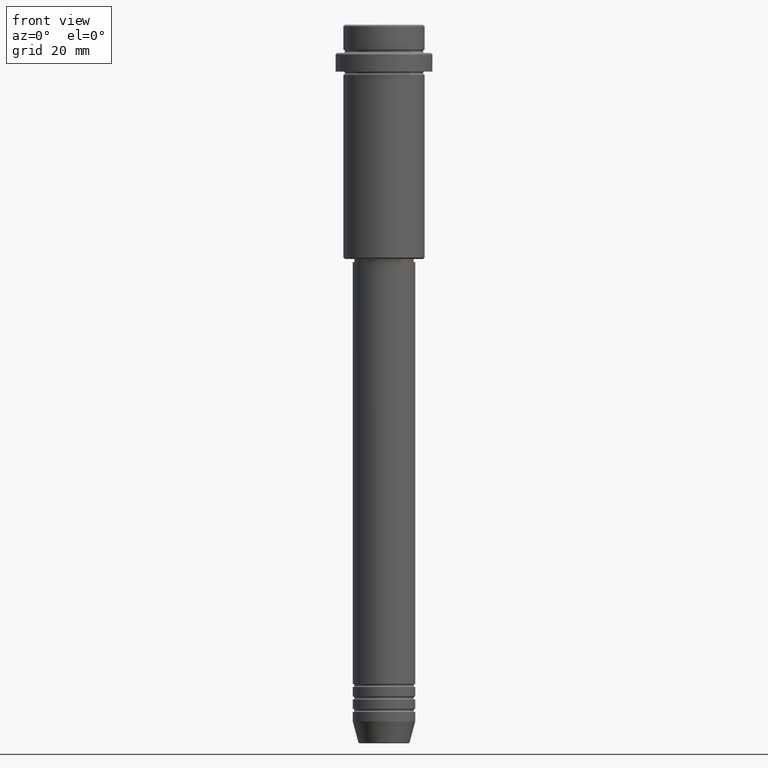
[diagram: clean part render]
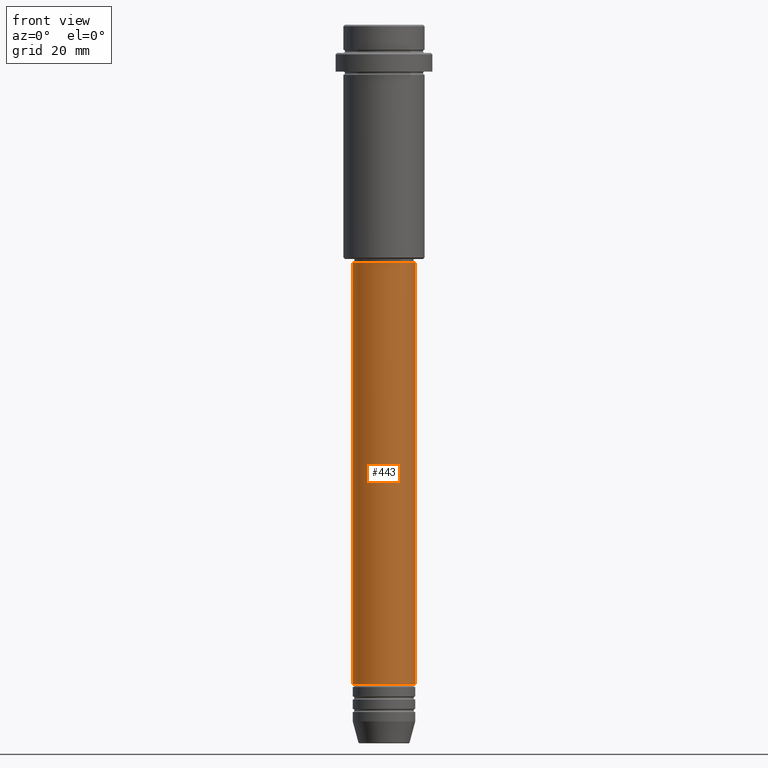
[diagram: same view with one face highlighted and labeled with its STEP entity id]
A machine part, front view. The second image highlights one B-rep face of the part: STEP entity #443.
In plain terms, the highlighted cylindrical surface (edge-blend (fillet) strip) has radius 10 mm, axis along (-0, -0, 1).
Its self-contained STEP definition (entity closure, byte-faithful):
#18 = CARTESIAN_POINT ( 'NONE',  ( 0.000000000000000000, 0.000000000000000000, -210.9999999999999432 ) ) ;
#32 = DIRECTION ( 'NONE',  ( -0.000000000000000000, -0.000000000000000000, 1.000000000000000000 ) ) ;
#39 = ORIENTED_EDGE ( 'NONE', *, *, #1326, .F. ) ;
#60 = EDGE_CURVE ( 'NONE', #253, #647, #1261, .T. ) ;
#80 = EDGE_LOOP ( 'NONE', ( #39, #462, #1089, #1194 ) ) ;
#141 = CIRCLE ( 'NONE', #476, 10.00000000000000178 ) ;
#187 = DIRECTION ( 'NONE',  ( -0.000000000000000000, -0.000000000000000000, 1.000000000000000000 ) ) ;
#195 = DIRECTION ( 'NONE',  ( -0.000000000000000000, -0.000000000000000000, 1.000000000000000000 ) ) ;
#222 = CARTESIAN_POINT ( 'NONE',  ( 10.00000000000000000, 0.000000000000000000, -210.9999999999999432 ) ) ;
#227 = CARTESIAN_POINT ( 'NONE',  ( 10.00000000000000178, 0.000000000000000000, 0.000000000000000000 ) ) ;
#253 = VERTEX_POINT ( 'NONE', #981 ) ;
#413 = CARTESIAN_POINT ( 'NONE',  ( 0.000000000000000000, 0.000000000000000000, -76.00000000000001421 ) ) ;
#442 = CARTESIAN_POINT ( 'NONE',  ( -10.00000000000000178, 1.224646799147353454E-15, 0.000000000000000000 ) ) ;
#443 = ADVANCED_FACE ( 'NONE', ( #980 ), #1391, .T. ) ;
#462 = ORIENTED_EDGE ( 'NONE', *, *, #60, .T. ) ;
#463 = LINE ( 'NONE', #442, #1343 ) ;
#476 = AXIS2_PLACEMENT_3D ( 'NONE', #413, #1298, #1057 ) ;
#567 = EDGE_CURVE ( 'NONE', #1264, #791, #141, .T. ) ;
#634 = DIRECTION ( 'NONE',  ( 1.000000000000000000, 0.000000000000000000, 0.000000000000000000 ) ) ;
#641 = AXIS2_PLACEMENT_3D ( 'NONE', #730, #187, #1414 ) ;
#647 = VERTEX_POINT ( 'NONE', #222 ) ;
#730 = CARTESIAN_POINT ( 'NONE',  ( 0.000000000000000000, 0.000000000000000000, 0.000000000000000000 ) ) ;
#786 = CARTESIAN_POINT ( 'NONE',  ( -10.00000000000000178, 1.224646799147353454E-15, -76.00000000000001421 ) ) ;
#791 = VERTEX_POINT ( 'NONE', #993 ) ;
#888 = DIRECTION ( 'NONE',  ( -0.000000000000000000, -0.000000000000000000, 1.000000000000000000 ) ) ;
#980 = FACE_OUTER_BOUND ( 'NONE', #80, .T. ) ;
#981 = CARTESIAN_POINT ( 'NONE',  ( -10.00000000000000000, 1.224646799147353256E-15, -210.9999999999999432 ) ) ;
#993 = CARTESIAN_POINT ( 'NONE',  ( 10.00000000000000178, 0.000000000000000000, -76.00000000000001421 ) ) ;
#1020 = LINE ( 'NONE', #227, #1121 ) ;
#1057 = DIRECTION ( 'NONE',  ( 1.000000000000000000, 0.000000000000000000, 0.000000000000000000 ) ) ;
#1089 = ORIENTED_EDGE ( 'NONE', *, *, #1320, .T. ) ;
#1121 = VECTOR ( 'NONE', #32, 1000.000000000000000 ) ;
#1194 = ORIENTED_EDGE ( 'NONE', *, *, #567, .F. ) ;
#1261 = CIRCLE ( 'NONE', #1351, 10.00000000000000000 ) ;
#1264 = VERTEX_POINT ( 'NONE', #786 ) ;
#1298 = DIRECTION ( 'NONE',  ( -0.000000000000000000, -0.000000000000000000, 1.000000000000000000 ) ) ;
#1320 = EDGE_CURVE ( 'NONE', #647, #791, #1020, .T. ) ;
#1326 = EDGE_CURVE ( 'NONE', #253, #1264, #463, .T. ) ;
#1343 = VECTOR ( 'NONE', #888, 1000.000000000000000 ) ;
#1351 = AXIS2_PLACEMENT_3D ( 'NONE', #18, #195, #634 ) ;
#1391 = CYLINDRICAL_SURFACE ( 'NONE', #641, 10.00000000000000178 ) ;
#1414 = DIRECTION ( 'NONE',  ( 1.000000000000000000, 0.000000000000000000, 0.000000000000000000 ) ) ;